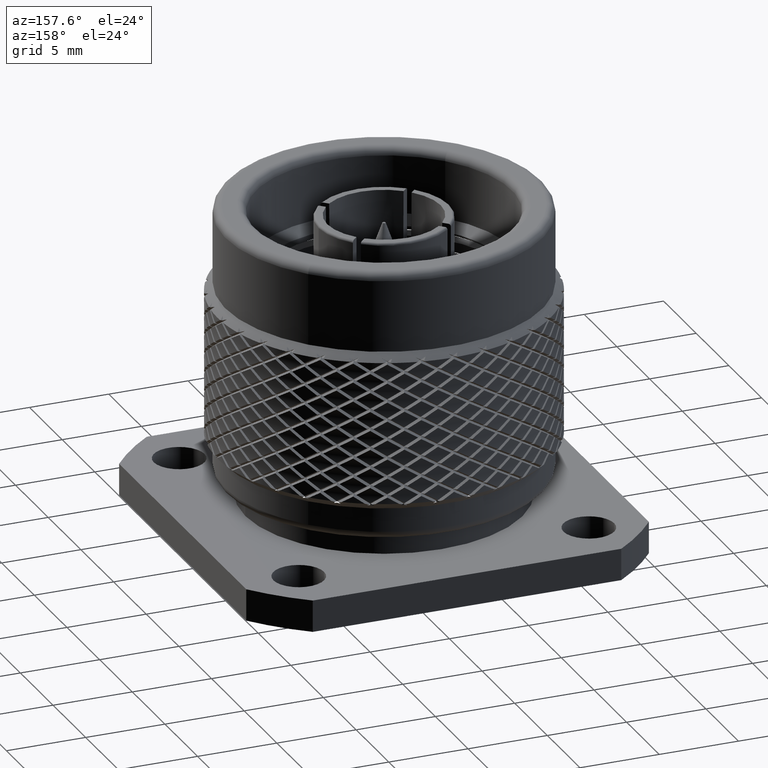
[diagram: clean part render]
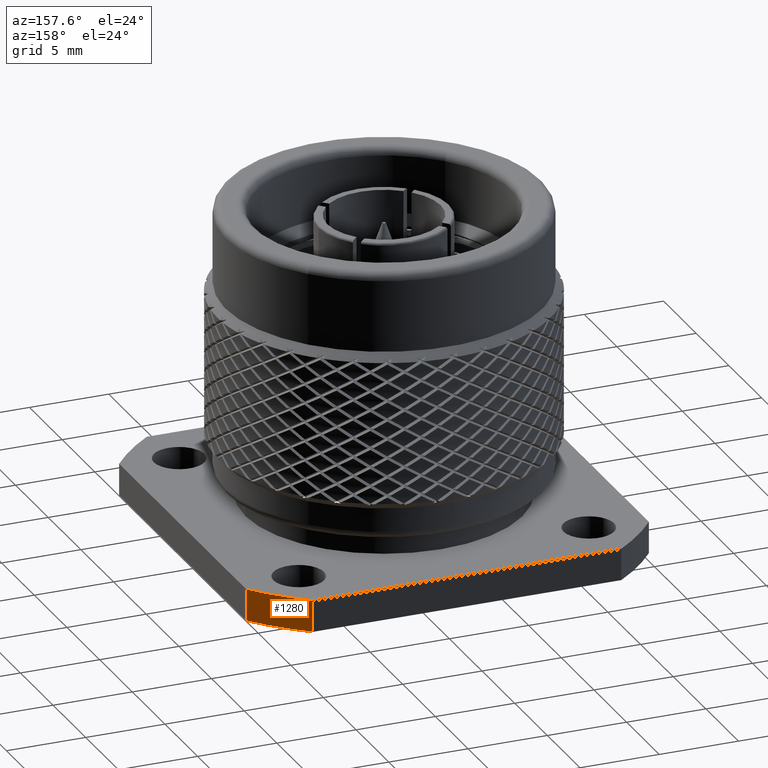
[diagram: same view with one face highlighted and labeled with its STEP entity id]
A machine part, auxiliary view. The second image highlights one B-rep face of the part: STEP entity #1280.
In plain terms, the highlighted cylindrical surface (partial cylindrical patch) has radius 16 mm, axis along (-0, -0, -1).
Its self-contained STEP definition (entity closure, byte-faithful):
#1280 = ADVANCED_FACE ( 'NONE', ( #21139 ), #69301, .T. ) ;
#3009 = CARTESIAN_POINT ( 'NONE',  ( 9.731906288081489720, 12.69999999999999751, 1.999999999999999556 ) ) ;
#7185 = CIRCLE ( 'NONE', #17257, 16.00000000000001421 ) ;
#7702 = DIRECTION ( 'NONE',  ( -1.000000000000000000, 0.000000000000000000, 0.000000000000000000 ) ) ;
#9183 = CARTESIAN_POINT ( 'NONE',  ( 9.731906288081514589, 12.69999999999999751, 0.000000000000000000 ) ) ;
#15404 = EDGE_CURVE ( 'NONE', #144536, #49630, #108091, .T. ) ;
#15708 = DIRECTION ( 'NONE',  ( -1.000000000000000000, 0.000000000000000000, 0.000000000000000000 ) ) ;
#17257 = AXIS2_PLACEMENT_3D ( 'NONE', #64666, #134232, #15708 ) ;
#19494 = CARTESIAN_POINT ( 'NONE',  ( 12.69999999999999751, 9.731906288081514589, 0.000000000000000000 ) ) ;
#21139 = FACE_OUTER_BOUND ( 'NONE', #27121, .T. ) ;
#22506 = CARTESIAN_POINT ( 'NONE',  ( 9.731906288081503931, 12.69999999999999751, 0.000000000000000000 ) ) ;
#27121 = EDGE_LOOP ( 'NONE', ( #85881, #47428, #85911, #95166 ) ) ;
#31448 = DIRECTION ( 'NONE',  ( -0.000000000000000000, -0.000000000000000000, -1.000000000000000000 ) ) ;
#33643 = EDGE_CURVE ( 'NONE', #84521, #109502, #7185, .T. ) ;
#39262 = CARTESIAN_POINT ( 'NONE',  ( 12.69999999999999751, 9.731906288081489720, 1.999999999999999556 ) ) ;
#42568 = CARTESIAN_POINT ( 'NONE',  ( 0.000000000000000000, 0.000000000000000000, 2.000000000000000000 ) ) ;
#45291 = CARTESIAN_POINT ( 'NONE',  ( 12.69999999999999751, 9.731906288081503931, 0.000000000000000000 ) ) ;
#46210 = EDGE_CURVE ( 'NONE', #84521, #144536, #130740, .T. ) ;
#46843 = LINE ( 'NONE', #45291, #148327 ) ;
#47428 = ORIENTED_EDGE ( 'NONE', *, *, #156399, .T. ) ;
#49630 = VERTEX_POINT ( 'NONE', #39262 ) ;
#57934 = DIRECTION ( 'NONE',  ( -0.000000000000000000, -0.000000000000000000, -1.000000000000000000 ) ) ;
#64666 = CARTESIAN_POINT ( 'NONE',  ( 0.000000000000000000, 0.000000000000000000, 0.000000000000000000 ) ) ;
#69301 = CYLINDRICAL_SURFACE ( 'NONE', #130080, 16.00000000000000711 ) ;
#70681 = DIRECTION ( 'NONE',  ( 0.000000000000000000, 0.000000000000000000, 1.000000000000000000 ) ) ;
#84521 = VERTEX_POINT ( 'NONE', #9183 ) ;
#85881 = ORIENTED_EDGE ( 'NONE', *, *, #15404, .T. ) ;
#85911 = ORIENTED_EDGE ( 'NONE', *, *, #33643, .F. ) ;
#87574 = DIRECTION ( 'NONE',  ( -1.000000000000000000, 0.000000000000000000, 0.000000000000000000 ) ) ;
#90712 = DIRECTION ( 'NONE',  ( -0.000000000000000000, -0.000000000000000000, -1.000000000000000000 ) ) ;
#95166 = ORIENTED_EDGE ( 'NONE', *, *, #46210, .T. ) ;
#108091 = CIRCLE ( 'NONE', #135825, 16.00000000000000000 ) ;
#109502 = VERTEX_POINT ( 'NONE', #19494 ) ;
#117531 = CARTESIAN_POINT ( 'NONE',  ( 0.000000000000000000, 0.000000000000000000, 0.000000000000000000 ) ) ;
#130080 = AXIS2_PLACEMENT_3D ( 'NONE', #117531, #31448, #7702 ) ;
#130740 = LINE ( 'NONE', #22506, #151423 ) ;
#134232 = DIRECTION ( 'NONE',  ( -0.000000000000000000, -0.000000000000000000, -1.000000000000000000 ) ) ;
#135825 = AXIS2_PLACEMENT_3D ( 'NONE', #42568, #90712, #87574 ) ;
#144536 = VERTEX_POINT ( 'NONE', #3009 ) ;
#148327 = VECTOR ( 'NONE', #57934, 1000.000000000000000 ) ;
#151423 = VECTOR ( 'NONE', #70681, 1000.000000000000000 ) ;
#156399 = EDGE_CURVE ( 'NONE', #49630, #109502, #46843, .T. ) ;